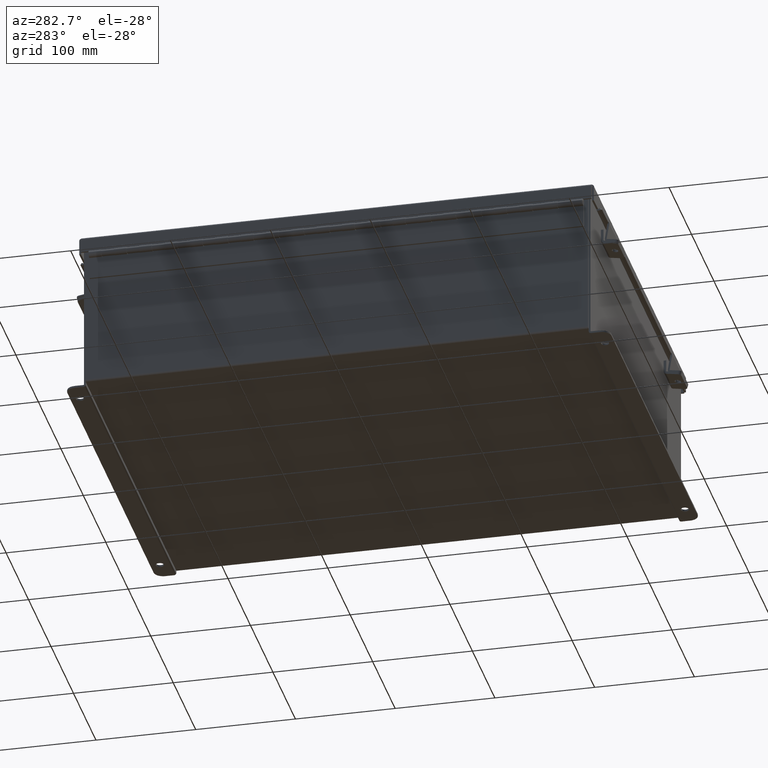
[diagram: clean part render]
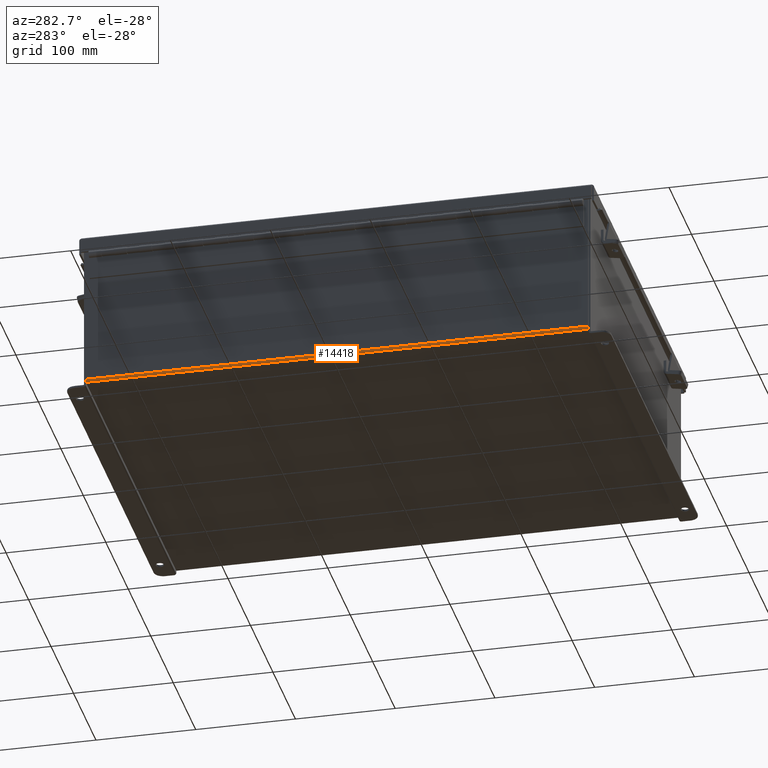
[diagram: same view with one face highlighted and labeled with its STEP entity id]
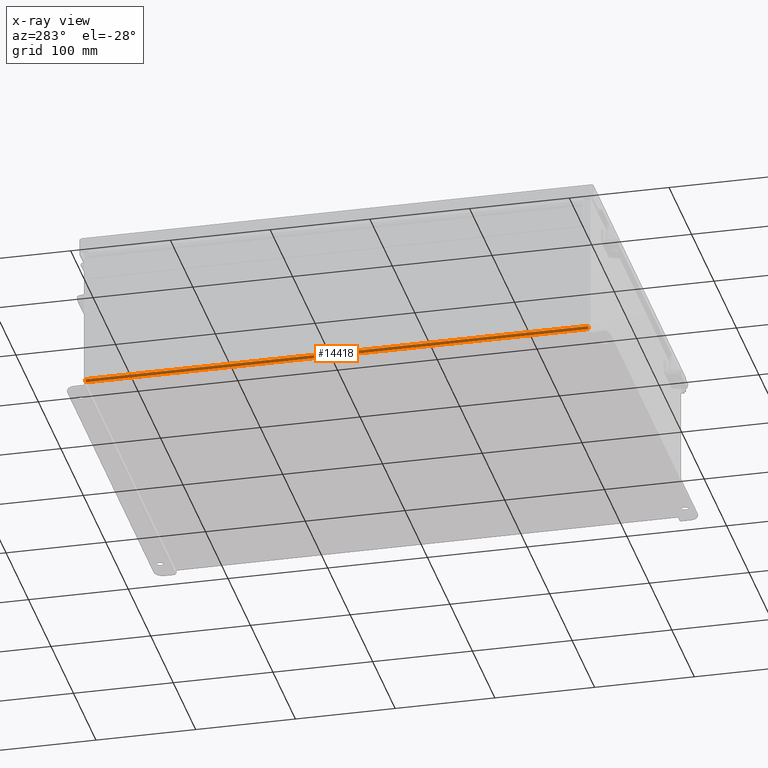
[diagram: x-ray of the same camera — body ghosted, the highlighted face saturated]
A machine part, auxiliary view. The second image highlights one B-rep face of the part: STEP entity #14418.
The next image is the same camera in x-ray: the body ghosted, the highlighted face saturated — about 0% of this face is hidden behind the body in this view.
In plain terms, the highlighted cylindrical surface (edge-blend (fillet) strip) has radius 2.2276 mm, axis along (0, -1, -0).
Its self-contained STEP definition (entity closure, byte-faithful):
#400 = CYLINDRICAL_SURFACE ( 'NONE', #15525, 0.08770000000000026400 ) ;
#730 = ORIENTED_EDGE ( 'NONE', *, *, #19088, .F. ) ;
#789 = CARTESIAN_POINT ( 'NONE',  ( -7.999999999999996400, 9.925299999999998200, 0.01300000000000009800 ) ) ;
#2157 = CIRCLE ( 'NONE', #8024, 0.08770000000000009700 ) ;
#2845 = CARTESIAN_POINT ( 'NONE',  ( -7.912299999999996600, -9.925299999999998200, -0.07470000000000130700 ) ) ;
#3108 = DIRECTION ( 'NONE',  ( -0.0000000000000000000, 1.000000000000000000, 8.208677865577646300E-017 ) ) ;
#3386 = AXIS2_PLACEMENT_3D ( 'NONE', #13496, #3108, #15209 ) ;
#3784 = CARTESIAN_POINT ( 'NONE',  ( -7.912299999999996600, -9.925299999999998200, 0.01299999999999878300 ) ) ;
#4846 = DIRECTION ( 'NONE',  ( -1.953496330014866600E-031, 1.000000000000000000, 5.504816970095139000E-017 ) ) ;
#5264 = EDGE_CURVE ( 'NONE', #9034, #18985, #15334, .T. ) ;
#5538 = DIRECTION ( 'NONE',  ( 0.0000000000000000000, 0.0000000000000000000, -1.000000000000000000 ) ) ;
#5621 = VECTOR ( 'NONE', #4846, 39.37007874015748100 ) ;
#6374 = CARTESIAN_POINT ( 'NONE',  ( -7.912299999999996600, -9.925299999999998200, -0.07470000000000130700 ) ) ;
#6764 = CARTESIAN_POINT ( 'NONE',  ( -7.912299999999996600, 9.925299999999998200, -0.07470000000000000300 ) ) ;
#8024 = AXIS2_PLACEMENT_3D ( 'NONE', #3784, #15879, #5538 ) ;
#8091 = ORIENTED_EDGE ( 'NONE', *, *, #18317, .F. ) ;
#9034 = VERTEX_POINT ( 'NONE', #20415 ) ;
#9155 = VECTOR ( 'NONE', #11579, 39.37007874015748100 ) ;
#9481 = VERTEX_POINT ( 'NONE', #2845 ) ;
#10144 = EDGE_CURVE ( 'NONE', #9481, #11718, #18325, .T. ) ;
#11579 = DIRECTION ( 'NONE',  ( -0.0000000000000000000, 1.000000000000000000, 8.208677865577646300E-017 ) ) ;
#11718 = VERTEX_POINT ( 'NONE', #6764 ) ;
#12305 = CARTESIAN_POINT ( 'NONE',  ( -7.912299999999996600, -9.925299999999998200, 0.01299999999999878300 ) ) ;
#13496 = CARTESIAN_POINT ( 'NONE',  ( -7.912299999999996600, 9.925299999999998200, 0.01300000000000042300 ) ) ;
#14037 = DIRECTION ( 'NONE',  ( -1.000000000000000000, 0.0000000000000000000, -3.553037762569317100E-015 ) ) ;
#14418 = ADVANCED_FACE ( 'NONE', ( #18782 ), #400, .T. ) ;
#14572 = CIRCLE ( 'NONE', #3386, 0.08770000000000009700 ) ;
#15090 = ORIENTED_EDGE ( 'NONE', *, *, #5264, .T. ) ;
#15209 = DIRECTION ( 'NONE',  ( 0.0000000000000000000, 0.0000000000000000000, -1.000000000000000000 ) ) ;
#15334 = LINE ( 'NONE', #18182, #5621 ) ;
#15525 = AXIS2_PLACEMENT_3D ( 'NONE', #12305, #17439, #14037 ) ;
#15858 = ORIENTED_EDGE ( 'NONE', *, *, #10144, .F. ) ;
#15879 = DIRECTION ( 'NONE',  ( 0.0000000000000000000, -1.000000000000000000, -8.208677865577646300E-017 ) ) ;
#16525 = EDGE_LOOP ( 'NONE', ( #15858, #8091, #15090, #730 ) ) ;
#17439 = DIRECTION ( 'NONE',  ( 0.0000000000000000000, -1.000000000000000000, -8.208677865577646300E-017 ) ) ;
#18182 = CARTESIAN_POINT ( 'NONE',  ( -7.999999999999996400, 9.925299999999998200, 0.01299999999999984300 ) ) ;
#18317 = EDGE_CURVE ( 'NONE', #9034, #9481, #2157, .T. ) ;
#18325 = LINE ( 'NONE', #6374, #9155 ) ;
#18782 = FACE_OUTER_BOUND ( 'NONE', #16525, .T. ) ;
#18985 = VERTEX_POINT ( 'NONE', #789 ) ;
#19088 = EDGE_CURVE ( 'NONE', #11718, #18985, #14572, .T. ) ;
#20415 = CARTESIAN_POINT ( 'NONE',  ( -7.999999999999996400, -9.925299999999996500, 0.01299999999999875000 ) ) ;